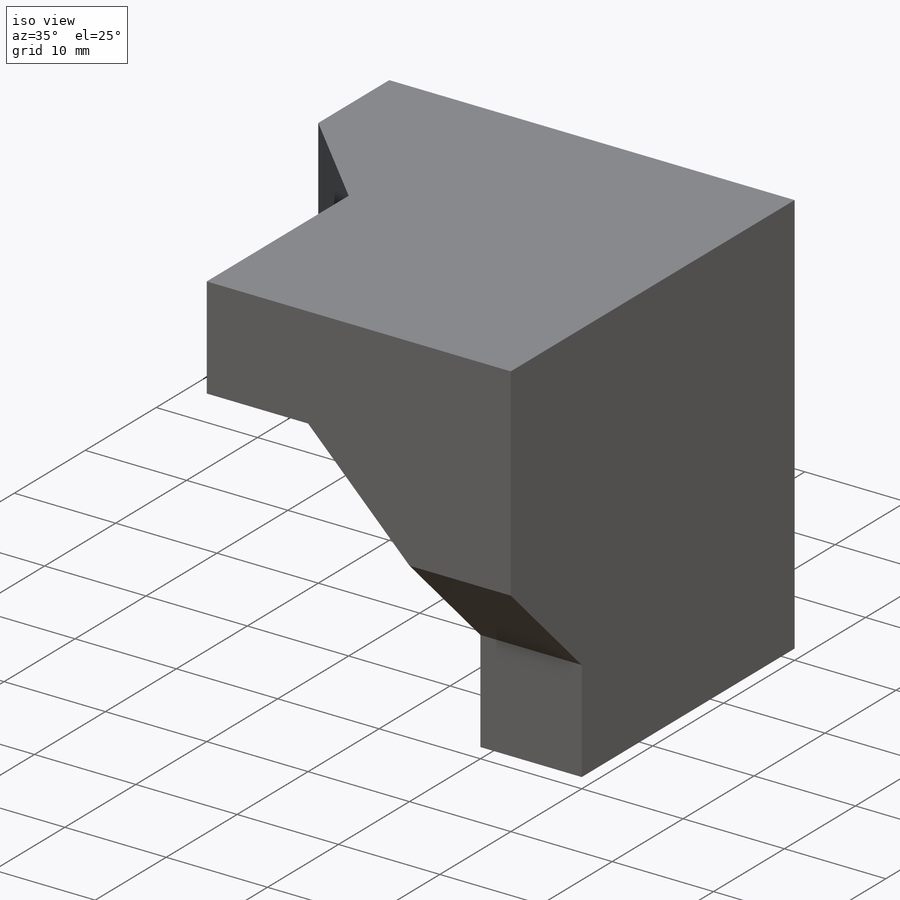
[diagram: iso view]
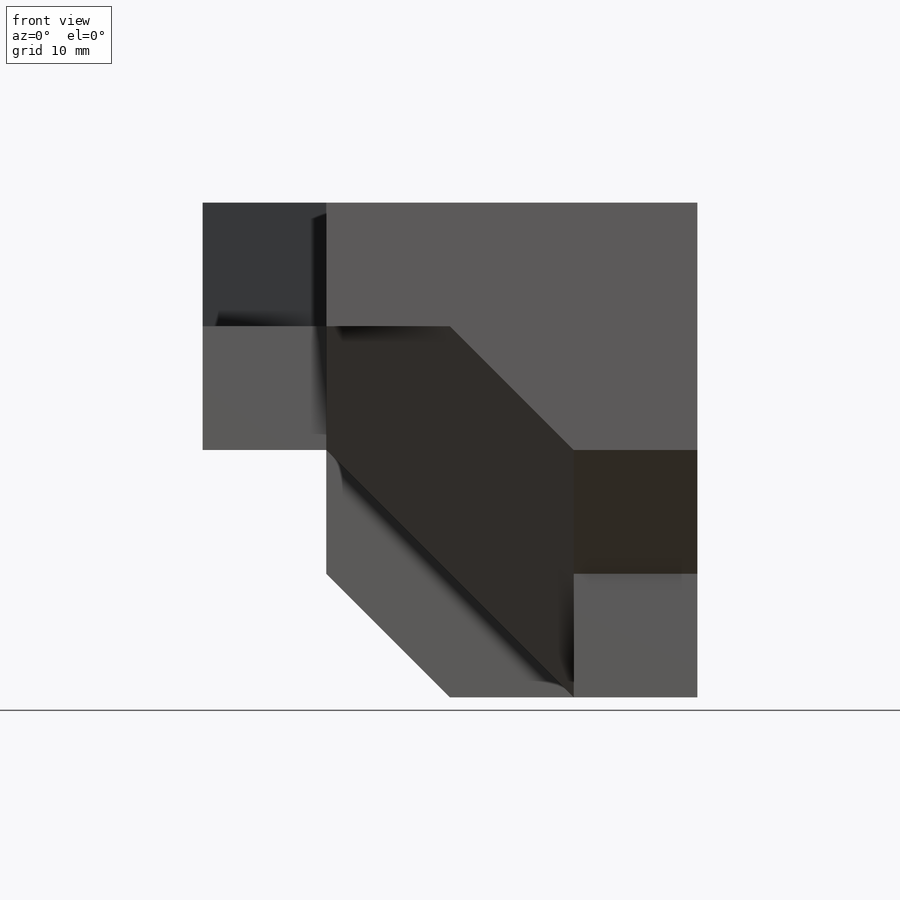
[diagram: front view]
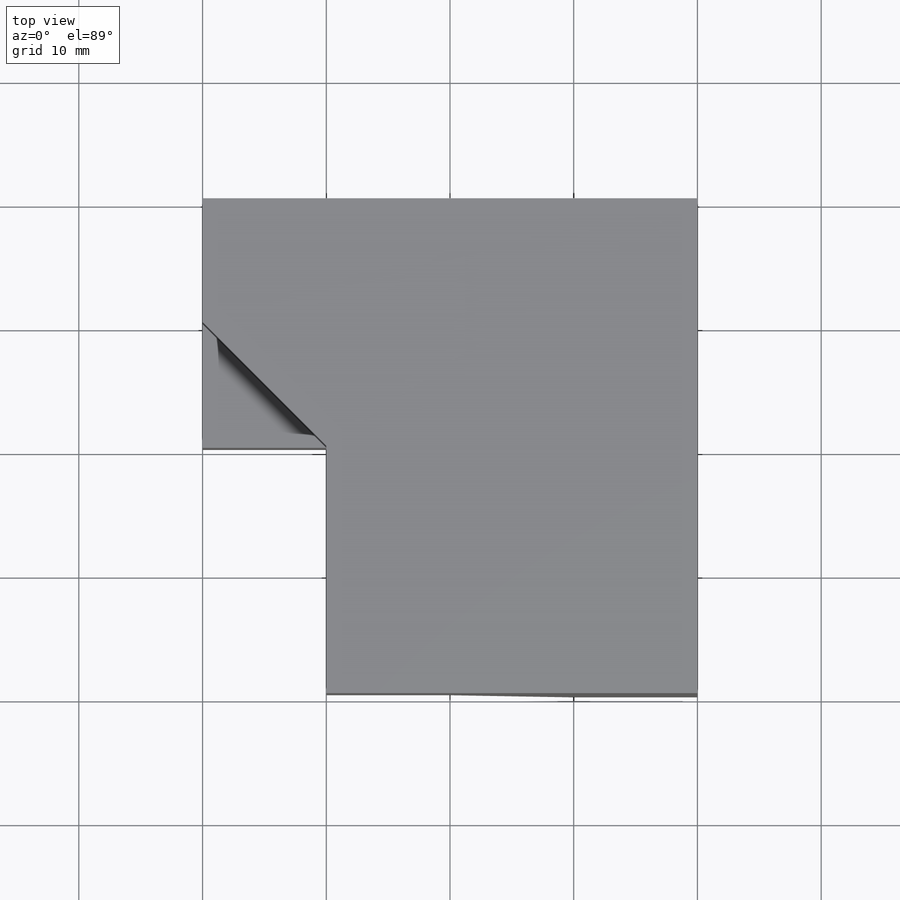
[diagram: top view]
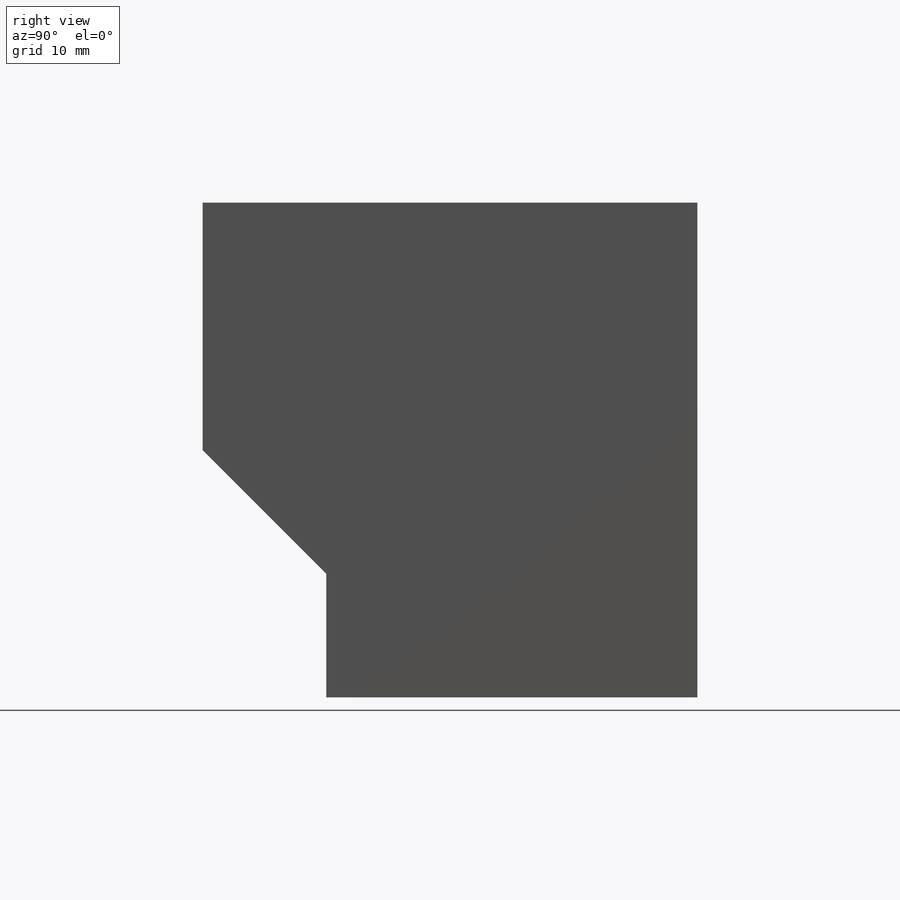
[diagram: right view]
SOLIDWORKS PART (.sldprt)
format: sldprt  version: not decoded by parser v0  size: 303,616 bytes
history: native  units: mm
features: sketch x15, extrude x10, cut_extrude x4, material x1, plane x1 (+13 scaffold rows collapsed)
feature tree (44):
  scaffold x13  (default folders/planes/origin — collapsed)
  material  "Material <not specified>"
  sketch  "Sketch1"  dims[c1.D1=~55.054198mm c1.D2=~73.405597mm c2.D1=40.0mm c2.D2=40.0mm]
  extrude  "Boss-Extrude1"  Depth=20mm
  sketch  "Sketch2"  dims[D1=10.0mm D2=10.0mm D3=10.0mm]
  extrude  "Boss-Extrude3"  Depth=10mm
  sketch  "Sketch3"  dims[c1.D1=30.0mm c1.D2=10.0mm c2.D1=~14.142136mm]
  extrude  "Boss-Extrude5"  Depth=10mm
  sketch  "Sketch4"  dims[D1=~14.142136mm]
  extrude  "Boss-Extrude6"  Depth=10mm
  sketch  "Sketch5"  dims[c1.D1=40.0mm c1.D2=~8.014678mm c2.D1=10.0mm]
  cut_extrude  "Cut-Extrude3"  Depth=25mm
  sketch  "Sketch7"  dims[D1=10.0mm D2=10.0mm]
  cut_extrude  "Cut-Extrude4"  Depth=25mm
  sketch  "Sketch8"  dims[D1=20.0mm D2=10.0mm]
  cut_extrude  "Cut-Extrude5"  Depth=10mm
  sketch  "Sketch9"  dims[c1.D1=~19.570474mm c1.D2=20.0mm c2.D1=20.0mm]
  extrude  "Boss-Extrude7"  Depth=10mm
  sketch  "Sketch10"  dims[D1=10.0mm D2=10.0mm]
  cut_extrude  "Cut-Extrude6"  Depth=10mm
  sketch  "Sketch11"  dims[D1=10.0mm D2=10.0mm D3=10.0mm D4=0.0mm]
  extrude  "Boss-Extrude8"  Depth=10mm
  sketch  "Sketch12"  dims[c1.D1=~10.165223mm c1.D2=20.0mm c2.D1=10.0mm]
  extrude  "Boss-Extrude9"  Depth=20mm
  sketch  "Sketch13"  dims[D1=10.0mm]
  extrude  "Boss-Extrude10"  Depth=20mm
  sketch  "Sketch15"  dims[D1=~28.284271mm]
  sketch  "Sketch16"  dims[D1=10.0mm D2=10.0mm]
  extrude  "Boss-Extrude11"  Depth=20mm
  plane  "Plane1"
  sketch  "Sketch17"  dims[D1=~28.284271mm]
  extrude  "Boss-Extrude12"  Depth=17mm
decode coverage: 29 of 29 modeling features carry decoded parameters
note: ~ marks probable driven/reference dimensions
note: suppression state not decoded; provenance and decode notes live in map.json
